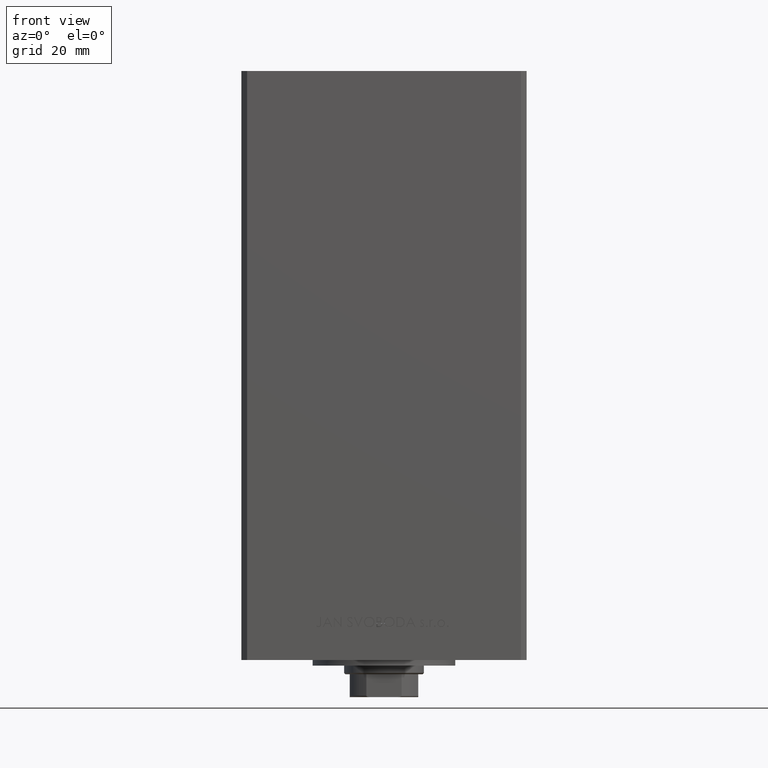
[diagram: clean part render]
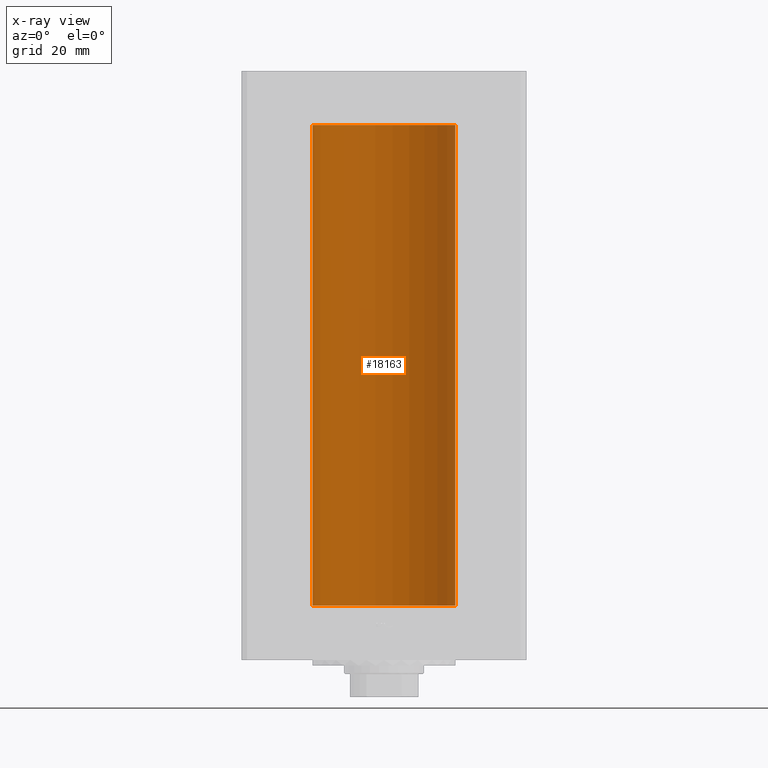
[diagram: x-ray — body ghosted, one internal face saturated and labeled with its STEP entity id]
A machine part, front view, then the same camera in x-ray: the body is ghosted and one INTERNAL B-rep face — a face not visible from any outside direction — is saturated and labeled: STEP entity #18163.
In plain terms, the highlighted cylindrical surface (partial cylindrical patch) has radius 25 mm, axis along (-0, -0, -1).
Its self-contained STEP definition (entity closure, byte-faithful):
#636 = VECTOR ( 'NONE', #25816, 1000.000000000000000 ) ;
#901 = LINE ( 'NONE', #43170, #18262 ) ;
#1969 = VERTEX_POINT ( 'NONE', #33785 ) ;
#2675 = FACE_OUTER_BOUND ( 'NONE', #29306, .T. ) ;
#5912 = VERTEX_POINT ( 'NONE', #24036 ) ;
#6696 = ORIENTED_EDGE ( 'NONE', *, *, #16872, .T. ) ;
#6771 = AXIS2_PLACEMENT_3D ( 'NONE', #23751, #46864, #12779 ) ;
#10618 = CARTESIAN_POINT ( 'NONE',  ( -25.00000000000000000, 0.000000000000000000, 168.5000000000000000 ) ) ;
#12779 = DIRECTION ( 'NONE',  ( 1.000000000000000000, 0.000000000000000000, 0.000000000000000000 ) ) ;
#13801 = DIRECTION ( 'NONE',  ( 1.000000000000000000, 0.000000000000000000, 0.000000000000000000 ) ) ;
#14119 = DIRECTION ( 'NONE',  ( -0.000000000000000000, -0.000000000000000000, -1.000000000000000000 ) ) ;
#14704 = CIRCLE ( 'NONE', #6771, 25.00000000000000000 ) ;
#16872 = EDGE_CURVE ( 'NONE', #23950, #21904, #33516, .T. ) ;
#17859 = CARTESIAN_POINT ( 'NONE',  ( 0.000000000000000000, 0.000000000000000000, 168.5000000000000000 ) ) ;
#18163 = ADVANCED_FACE ( 'NONE', ( #2675 ), #36772, .F. ) ;
#18262 = VECTOR ( 'NONE', #19550, 1000.000000000000000 ) ;
#19550 = DIRECTION ( 'NONE',  ( -0.000000000000000000, -0.000000000000000000, -1.000000000000000000 ) ) ;
#21904 = VERTEX_POINT ( 'NONE', #38296 ) ;
#23573 = EDGE_CURVE ( 'NONE', #1969, #23950, #38134, .T. ) ;
#23751 = CARTESIAN_POINT ( 'NONE',  ( 0.000000000000000000, 0.000000000000000000, 0.000000000000000000 ) ) ;
#23950 = VERTEX_POINT ( 'NONE', #39252 ) ;
#24036 = CARTESIAN_POINT ( 'NONE',  ( 25.00000000000000000, 3.061616997868383043E-15, 0.000000000000000000 ) ) ;
#25816 = DIRECTION ( 'NONE',  ( -0.000000000000000000, -0.000000000000000000, -1.000000000000000000 ) ) ;
#27563 = ORIENTED_EDGE ( 'NONE', *, *, #23573, .T. ) ;
#29306 = EDGE_LOOP ( 'NONE', ( #45576, #27563, #6696, #29995 ) ) ;
#29314 = DIRECTION ( 'NONE',  ( -1.000000000000000000, 0.000000000000000000, 0.000000000000000000 ) ) ;
#29972 = EDGE_CURVE ( 'NONE', #5912, #21904, #14704, .T. ) ;
#29995 = ORIENTED_EDGE ( 'NONE', *, *, #29972, .F. ) ;
#31019 = AXIS2_PLACEMENT_3D ( 'NONE', #36444, #47889, #13801 ) ;
#33516 = LINE ( 'NONE', #10618, #636 ) ;
#33785 = CARTESIAN_POINT ( 'NONE',  ( 25.00000000000000000, 3.061616997868383043E-15, 168.5000000000000000 ) ) ;
#34017 = AXIS2_PLACEMENT_3D ( 'NONE', #17859, #14119, #29314 ) ;
#36444 = CARTESIAN_POINT ( 'NONE',  ( 0.000000000000000000, 0.000000000000000000, 168.5000000000000000 ) ) ;
#36772 = CYLINDRICAL_SURFACE ( 'NONE', #34017, 25.00000000000000000 ) ;
#38134 = CIRCLE ( 'NONE', #31019, 25.00000000000000000 ) ;
#38296 = CARTESIAN_POINT ( 'NONE',  ( -25.00000000000000000, 0.000000000000000000, 0.000000000000000000 ) ) ;
#39252 = CARTESIAN_POINT ( 'NONE',  ( -25.00000000000000000, 0.000000000000000000, 168.5000000000000000 ) ) ;
#43008 = EDGE_CURVE ( 'NONE', #1969, #5912, #901, .T. ) ;
#43170 = CARTESIAN_POINT ( 'NONE',  ( 25.00000000000000000, 3.061616997868383043E-15, 168.5000000000000000 ) ) ;
#45576 = ORIENTED_EDGE ( 'NONE', *, *, #43008, .F. ) ;
#46864 = DIRECTION ( 'NONE',  ( -0.000000000000000000, 0.000000000000000000, 1.000000000000000000 ) ) ;
#47889 = DIRECTION ( 'NONE',  ( -0.000000000000000000, 0.000000000000000000, 1.000000000000000000 ) ) ;